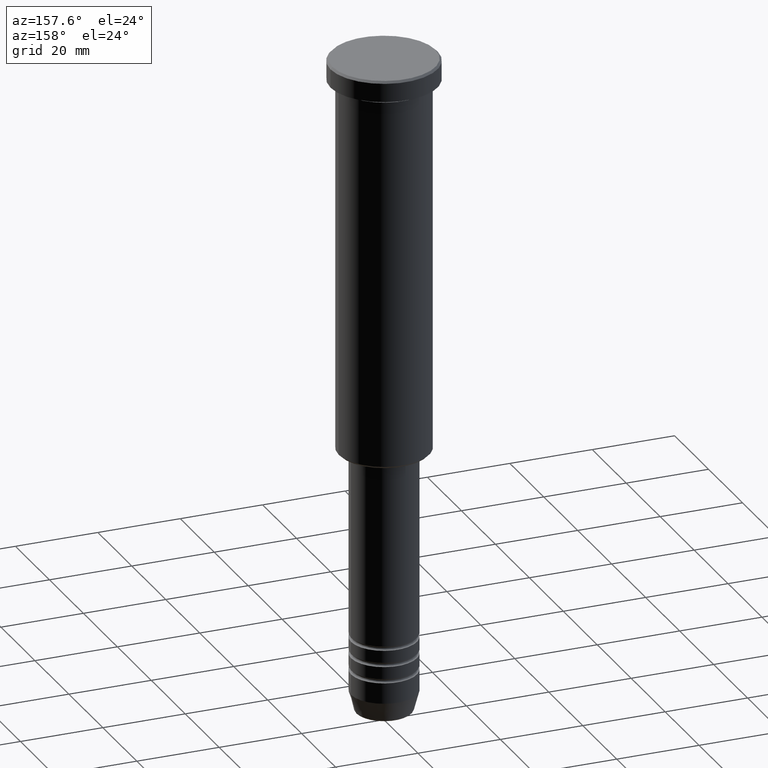
[diagram: clean part render]
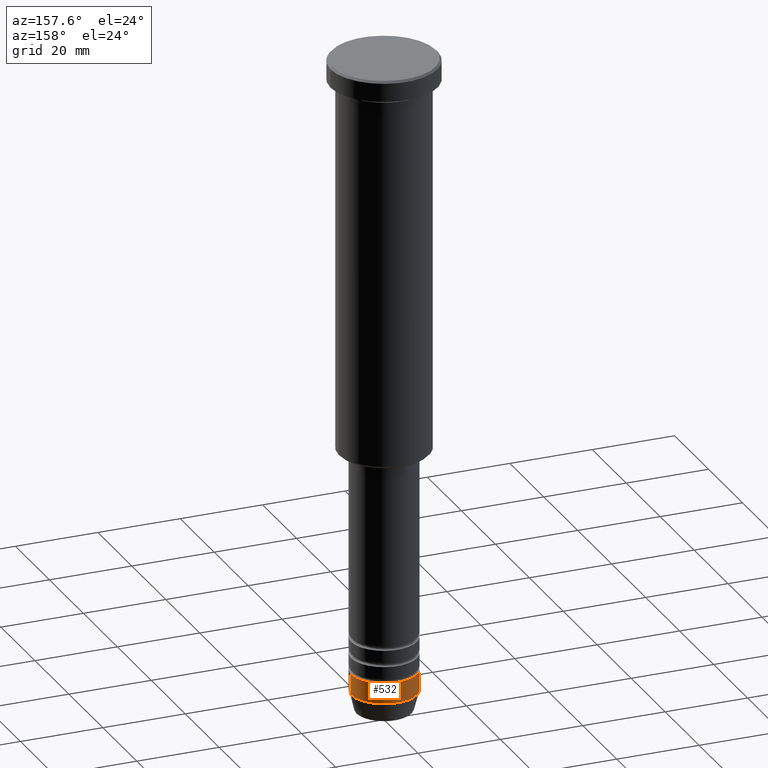
[diagram: same view with one face highlighted and labeled with its STEP entity id]
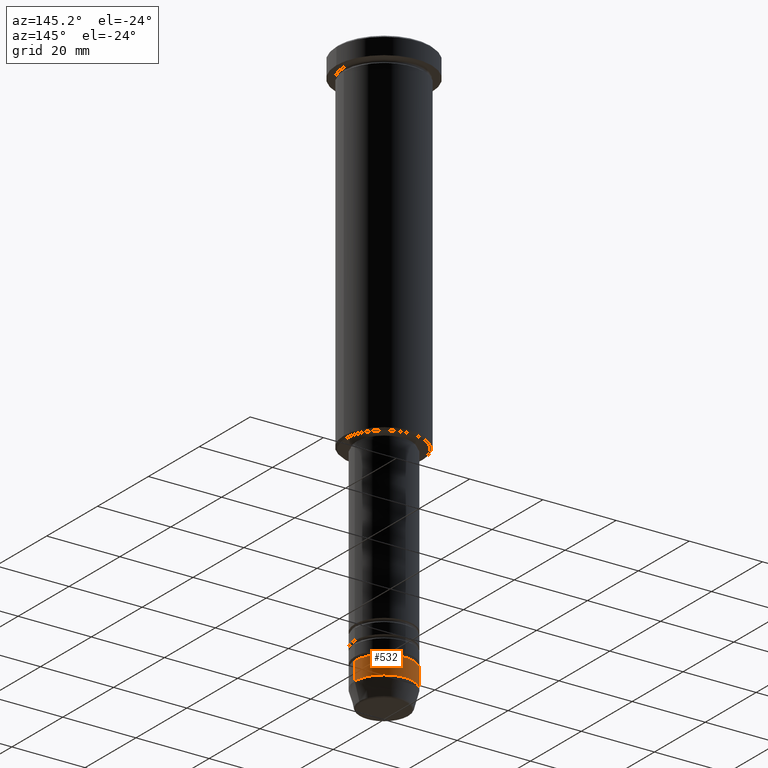
[diagram: same view with one face highlighted and labeled with its STEP entity id]
A machine part, auxiliary view. The second image highlights one B-rep face of the part: STEP entity #532.
A second angle (auxiliary view) of the same face is appended — the face is thin or edge-on in the first view.
In plain terms, the highlighted cylindrical surface (edge-blend (fillet) strip) has radius 8 mm, axis along (-0, -0, 1).
Its self-contained STEP definition (entity closure, byte-faithful):
#4 = AXIS2_PLACEMENT_3D ( 'NONE', #576, #776, #127 ) ;
#19 = EDGE_CURVE ( 'NONE', #149, #363, #1117, .T. ) ;
#44 = CARTESIAN_POINT ( 'NONE',  ( 0.000000000000000000, 0.000000000000000000, -155.0000000000000000 ) ) ;
#50 = CIRCLE ( 'NONE', #704, 8.000000000000000000 ) ;
#88 = CARTESIAN_POINT ( 'NONE',  ( 8.000000000000000000, 0.000000000000000000, -155.0000000000000000 ) ) ;
#116 = EDGE_CURVE ( 'NONE', #363, #181, #686, .T. ) ;
#127 = DIRECTION ( 'NONE',  ( 1.000000000000000000, 0.000000000000000000, 0.000000000000000000 ) ) ;
#139 = CYLINDRICAL_SURFACE ( 'NONE', #4, 8.000000000000000000 ) ;
#149 = VERTEX_POINT ( 'NONE', #88 ) ;
#181 = VERTEX_POINT ( 'NONE', #394 ) ;
#184 = DIRECTION ( 'NONE',  ( 1.000000000000000000, 0.000000000000000000, 0.000000000000000000 ) ) ;
#192 = DIRECTION ( 'NONE',  ( -0.000000000000000000, -0.000000000000000000, 1.000000000000000000 ) ) ;
#199 = DIRECTION ( 'NONE',  ( -0.000000000000000000, -0.000000000000000000, 1.000000000000000000 ) ) ;
#228 = ORIENTED_EDGE ( 'NONE', *, *, #364, .T. ) ;
#258 = VERTEX_POINT ( 'NONE', #491 ) ;
#301 = DIRECTION ( 'NONE',  ( -0.000000000000000000, -0.000000000000000000, 1.000000000000000000 ) ) ;
#305 = ORIENTED_EDGE ( 'NONE', *, *, #116, .F. ) ;
#319 = CARTESIAN_POINT ( 'NONE',  ( 8.000000000000000000, 0.000000000000000000, -150.0000000000000000 ) ) ;
#320 = FACE_OUTER_BOUND ( 'NONE', #379, .T. ) ;
#363 = VERTEX_POINT ( 'NONE', #319 ) ;
#364 = EDGE_CURVE ( 'NONE', #258, #181, #746, .T. ) ;
#379 = EDGE_LOOP ( 'NONE', ( #1177, #228, #305, #913 ) ) ;
#391 = DIRECTION ( 'NONE',  ( 1.000000000000000000, 0.000000000000000000, 0.000000000000000000 ) ) ;
#394 = CARTESIAN_POINT ( 'NONE',  ( -8.000000000000000000, 9.797174393178825657E-16, -150.0000000000000000 ) ) ;
#482 = DIRECTION ( 'NONE',  ( -0.000000000000000000, -0.000000000000000000, 1.000000000000000000 ) ) ;
#491 = CARTESIAN_POINT ( 'NONE',  ( -8.000000000000000000, 9.797174393178825657E-16, -155.0000000000000000 ) ) ;
#532 = ADVANCED_FACE ( 'NONE', ( #320 ), #139, .T. ) ;
#576 = CARTESIAN_POINT ( 'NONE',  ( 0.000000000000000000, 0.000000000000000000, 0.000000000000000000 ) ) ;
#686 = CIRCLE ( 'NONE', #943, 8.000000000000000000 ) ;
#704 = AXIS2_PLACEMENT_3D ( 'NONE', #44, #482, #391 ) ;
#746 = LINE ( 'NONE', #1116, #986 ) ;
#776 = DIRECTION ( 'NONE',  ( -0.000000000000000000, -0.000000000000000000, 1.000000000000000000 ) ) ;
#815 = CARTESIAN_POINT ( 'NONE',  ( 0.000000000000000000, 0.000000000000000000, -150.0000000000000000 ) ) ;
#817 = CARTESIAN_POINT ( 'NONE',  ( 8.000000000000000000, 0.000000000000000000, 0.000000000000000000 ) ) ;
#913 = ORIENTED_EDGE ( 'NONE', *, *, #19, .F. ) ;
#943 = AXIS2_PLACEMENT_3D ( 'NONE', #815, #192, #184 ) ;
#952 = EDGE_CURVE ( 'NONE', #149, #258, #50, .T. ) ;
#986 = VECTOR ( 'NONE', #301, 1000.000000000000000 ) ;
#1116 = CARTESIAN_POINT ( 'NONE',  ( -8.000000000000000000, 9.797174393178825657E-16, 0.000000000000000000 ) ) ;
#1117 = LINE ( 'NONE', #817, #1165 ) ;
#1165 = VECTOR ( 'NONE', #199, 1000.000000000000000 ) ;
#1177 = ORIENTED_EDGE ( 'NONE', *, *, #952, .T. ) ;